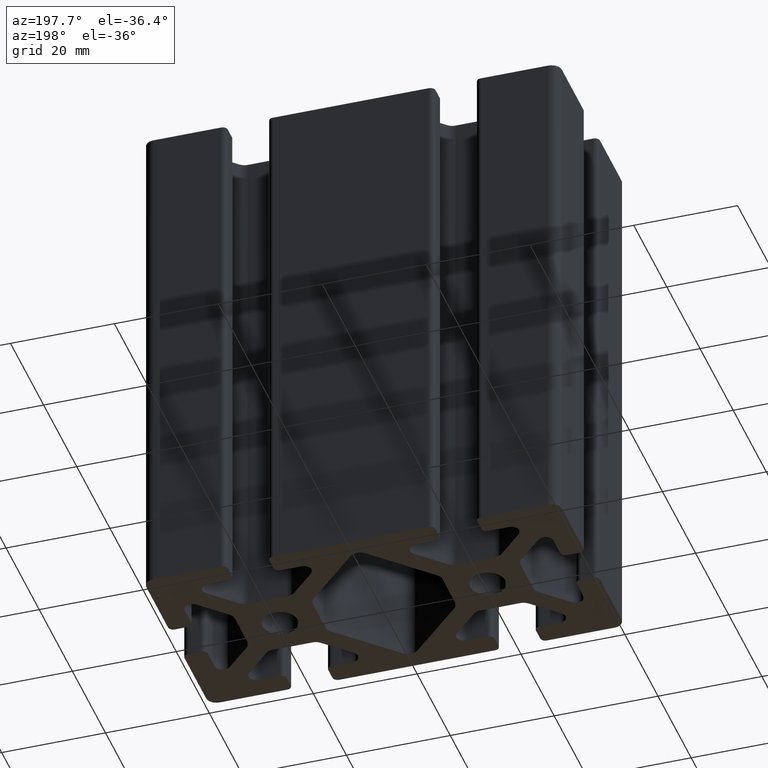
[diagram: clean part render]
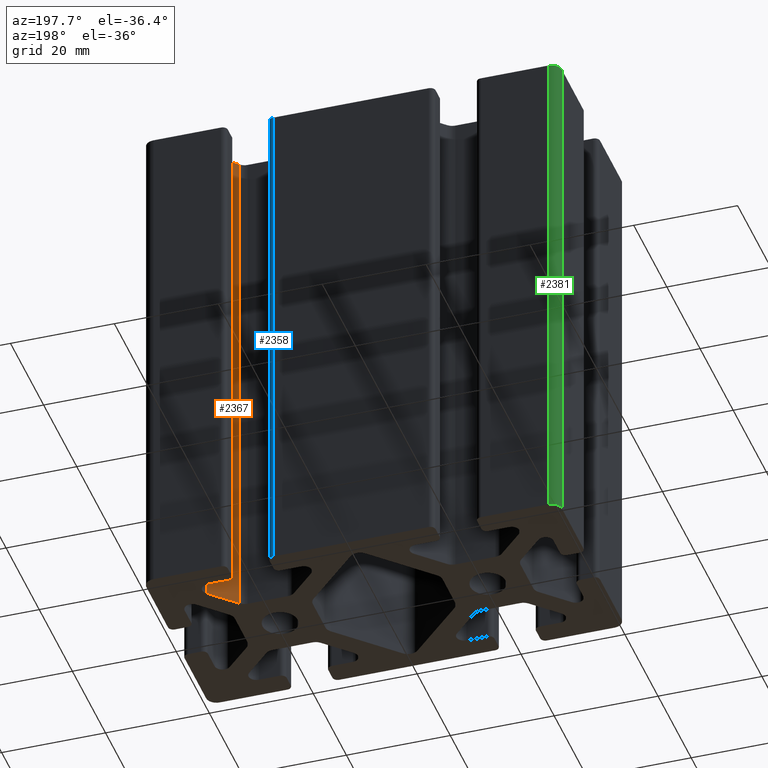
[diagram: same view with three faces highlighted in distinct colors, each labeled with its STEP entity id]
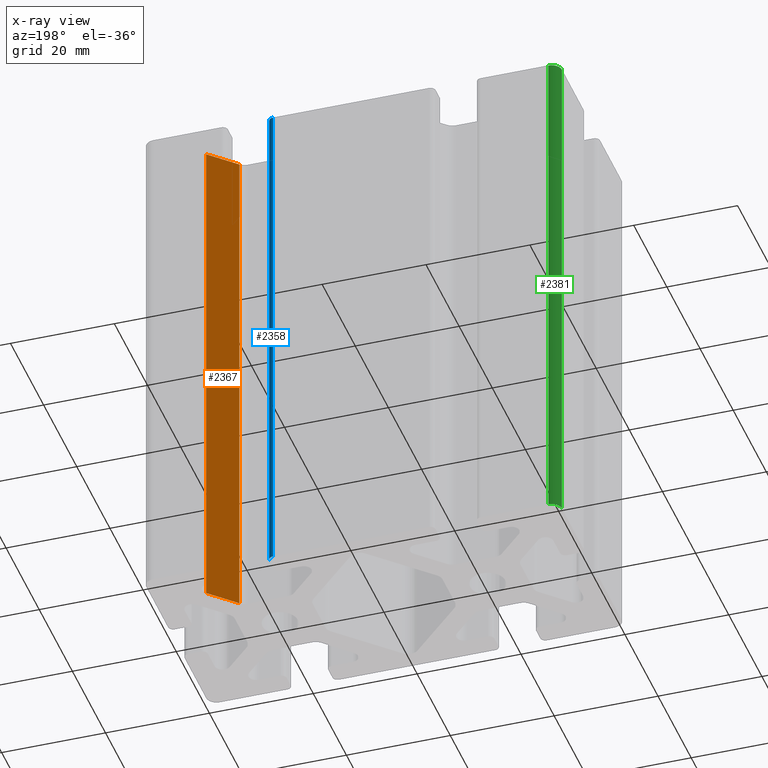
[diagram: x-ray of the same camera — body ghosted, the three highlighted faces saturated]
A machine part, auxiliary view with three faces highlighted in distinct colors.
The next image is the same camera in x-ray (body ghosted, the three faces saturated) — at least one of them is partly hidden behind the body in this view.
Their STEP definitions:

[orange] entity #2367 — the highlighted planar face has unit normal (0.7071, -0.7071, 0).
#211=LINE('',#3961,#443);
#212=LINE('',#3965,#444);
#213=LINE('',#3967,#445);
#214=LINE('',#3968,#446);
#443=VECTOR('',#3241,100.);
#444=VECTOR('',#3246,6.86396103067892);
#445=VECTOR('',#3247,100.);
#446=VECTOR('',#3248,6.86396103067892);
#525=PLANE('',#2597);
#647=FACE_OUTER_BOUND('',#769,.T.);
#769=EDGE_LOOP('',(#1899,#1900,#1901,#1902));
#1127=VERTEX_POINT('',#3958);
#1128=VERTEX_POINT('',#3960);
#1129=VERTEX_POINT('',#3964);
#1130=VERTEX_POINT('',#3966);
#1454=EDGE_CURVE('',#1128,#1127,#211,.T.);
#1456=EDGE_CURVE('',#1129,#1127,#212,.T.);
#1457=EDGE_CURVE('',#1130,#1129,#213,.T.);
#1458=EDGE_CURVE('',#1128,#1130,#214,.T.);
#1899=ORIENTED_EDGE('',*,*,#1456,.F.);
#1900=ORIENTED_EDGE('',*,*,#1457,.F.);
#1901=ORIENTED_EDGE('',*,*,#1458,.F.);
#1902=ORIENTED_EDGE('',*,*,#1454,.T.);
#2367=ADVANCED_FACE('',(#647),#525,.F.);
#2597=AXIS2_PLACEMENT_3D('',#3963,#3244,#3245);
#3241=DIRECTION('',(0.,0.,1.));
#3244=DIRECTION('center_axis',(0.707106781186548,-0.707106781186547,0.));
#3245=DIRECTION('ref_axis',(0.707106781186547,0.707106781186548,0.));
#3246=DIRECTION('',(-0.707106781186547,-0.707106781186548,0.));
#3247=DIRECTION('',(0.,0.,1.));
#3248=DIRECTION('',(0.707106781186547,0.707106781186548,0.));
#3958=CARTESIAN_POINT('',(25.2573593128807,8.0857864376269,100.));
#3960=CARTESIAN_POINT('',(25.2573593128807,8.0857864376269,0.));
#3961=CARTESIAN_POINT('',(25.2573593128807,8.0857864376269,0.));
#3963=CARTESIAN_POINT('Origin',(25.2573593128807,8.0857864376269,0.));
#3964=CARTESIAN_POINT('',(30.110912703474,12.9393398282202,100.));
#3965=CARTESIAN_POINT('',(16.9215728752538,-0.250000000000002,100.));
#3966=CARTESIAN_POINT('',(30.110912703474,12.9393398282202,0.));
#3967=CARTESIAN_POINT('',(30.110912703474,12.9393398282202,0.));
#3968=CARTESIAN_POINT('',(16.9215728752538,-0.250000000000002,0.));

[blue] entity #2358 — the highlighted cylindrical surface (edge-blend (fillet) strip) has radius 1 mm, axis along (0, 0, 1).
#194=LINE('',#3911,#426);
#195=LINE('',#3914,#427);
#426=VECTOR('',#3192,100.);
#427=VECTOR('',#3195,100.);
#638=FACE_OUTER_BOUND('',#760,.T.);
#760=EDGE_LOOP('',(#1863,#1864,#1865,#1866));
#893=CIRCLE('',#2579,1.);
#894=CIRCLE('',#2580,1.);
#1109=VERTEX_POINT('',#3907);
#1110=VERTEX_POINT('',#3908);
#1111=VERTEX_POINT('',#3910);
#1112=VERTEX_POINT('',#3912);
#1428=EDGE_CURVE('',#1109,#1110,#893,.T.);
#1429=EDGE_CURVE('',#1111,#1109,#194,.T.);
#1430=EDGE_CURVE('',#1112,#1111,#894,.T.);
#1431=EDGE_CURVE('',#1110,#1112,#195,.T.);
#1863=ORIENTED_EDGE('',*,*,#1428,.F.);
#1864=ORIENTED_EDGE('',*,*,#1429,.F.);
#1865=ORIENTED_EDGE('',*,*,#1430,.F.);
#1866=ORIENTED_EDGE('',*,*,#1431,.F.);
#2256=CYLINDRICAL_SURFACE('',#2578,1.);
#2358=ADVANCED_FACE('',(#638),#2256,.T.);
#2578=AXIS2_PLACEMENT_3D('',#3906,#3188,#3189);
#2579=AXIS2_PLACEMENT_3D('',#3909,#3190,#3191);
#2580=AXIS2_PLACEMENT_3D('',#3913,#3193,#3194);
#3188=DIRECTION('center_axis',(0.,0.,1.));
#3189=DIRECTION('ref_axis',(-1.,0.,0.));
#3190=DIRECTION('center_axis',(0.,0.,1.));
#3191=DIRECTION('ref_axis',(-1.,0.,0.));
#3192=DIRECTION('',(0.,0.,1.));
#3193=DIRECTION('center_axis',(0.,0.,-1.));
#3194=DIRECTION('ref_axis',(-1.,0.,0.));
#3195=DIRECTION('',(0.,0.,-1.));
#3906=CARTESIAN_POINT('Origin',(15.,19.,0.));
#3907=CARTESIAN_POINT('',(16.,19.,100.));
#3908=CARTESIAN_POINT('',(15.,20.,100.));
#3909=CARTESIAN_POINT('Origin',(15.,19.,100.));
#3910=CARTESIAN_POINT('',(16.,19.,0.));
#3911=CARTESIAN_POINT('',(16.,19.,0.));
#3912=CARTESIAN_POINT('',(15.,20.,0.));
#3913=CARTESIAN_POINT('Origin',(15.,19.,0.));
#3914=CARTESIAN_POINT('',(15.,20.,0.));

[green] entity #2381 — the highlighted cylindrical surface (edge-blend (fillet) strip) has radius 2 mm, axis along (0, 0, 1).
#226=LINE('',#4000,#458);
#240=LINE('',#4027,#472);
#458=VECTOR('',#3280,100.);
#472=VECTOR('',#3304,100.);
#661=FACE_OUTER_BOUND('',#786,.T.);
#786=EDGE_LOOP('',(#2069,#2070,#2071,#2072));
#908=CIRCLE('',#2615,2.);
#912=CIRCLE('',#2621,2.);
#1139=VERTEX_POINT('',#3997);
#1140=VERTEX_POINT('',#3999);
#1147=VERTEX_POINT('',#4024);
#1148=VERTEX_POINT('',#4026);
#1474=EDGE_CURVE('',#1140,#1139,#226,.T.);
#1488=EDGE_CURVE('',#1147,#1148,#240,.T.);
#1492=EDGE_CURVE('',#1139,#1148,#908,.T.);
#1497=EDGE_CURVE('',#1140,#1147,#912,.T.);
#2069=ORIENTED_EDGE('',*,*,#1492,.T.);
#2070=ORIENTED_EDGE('',*,*,#1488,.F.);
#2071=ORIENTED_EDGE('',*,*,#1497,.F.);
#2072=ORIENTED_EDGE('',*,*,#1474,.T.);
#2264=CYLINDRICAL_SURFACE('',#2620,2.);
#2381=ADVANCED_FACE('',(#661),#2264,.T.);
#2615=AXIS2_PLACEMENT_3D('',#4032,#3311,#3312);
#2620=AXIS2_PLACEMENT_3D('',#4039,#3322,#3323);
#2621=AXIS2_PLACEMENT_3D('',#4040,#3324,#3325);
#3280=DIRECTION('',(0.,0.,1.));
#3304=DIRECTION('',(0.,0.,1.));
#3311=DIRECTION('center_axis',(0.,0.,-1.));
#3312=DIRECTION('ref_axis',(-2.22044604925031E-15,1.,0.));
#3322=DIRECTION('center_axis',(0.,0.,1.));
#3323=DIRECTION('ref_axis',(-2.22044604925031E-15,1.,0.));
#3324=DIRECTION('center_axis',(0.,0.,-1.));
#3325=DIRECTION('ref_axis',(-2.22044604925031E-15,1.,0.));
#3997=CARTESIAN_POINT('',(-40.,18.,100.));
#3999=CARTESIAN_POINT('',(-40.,18.,0.));
#4000=CARTESIAN_POINT('',(-40.,18.,0.));
#4024=CARTESIAN_POINT('',(-38.,20.,0.));
#4026=CARTESIAN_POINT('',(-38.,20.,100.));
#4027=CARTESIAN_POINT('',(-38.,20.,0.));
#4032=CARTESIAN_POINT('Origin',(-38.,18.,100.));
#4039=CARTESIAN_POINT('Origin',(-38.,18.,0.));
#4040=CARTESIAN_POINT('Origin',(-38.,18.,0.));